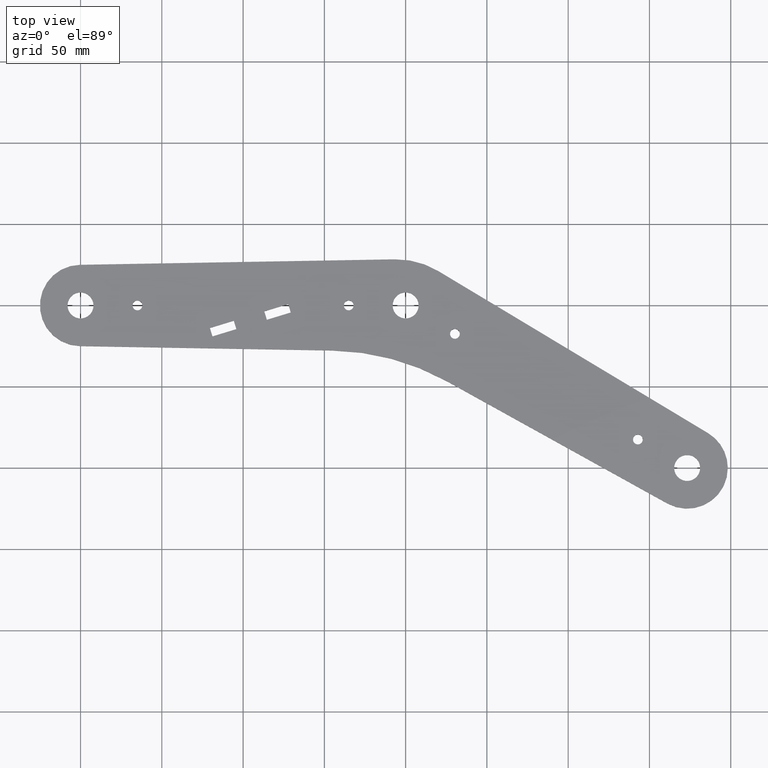
[diagram: clean part render]
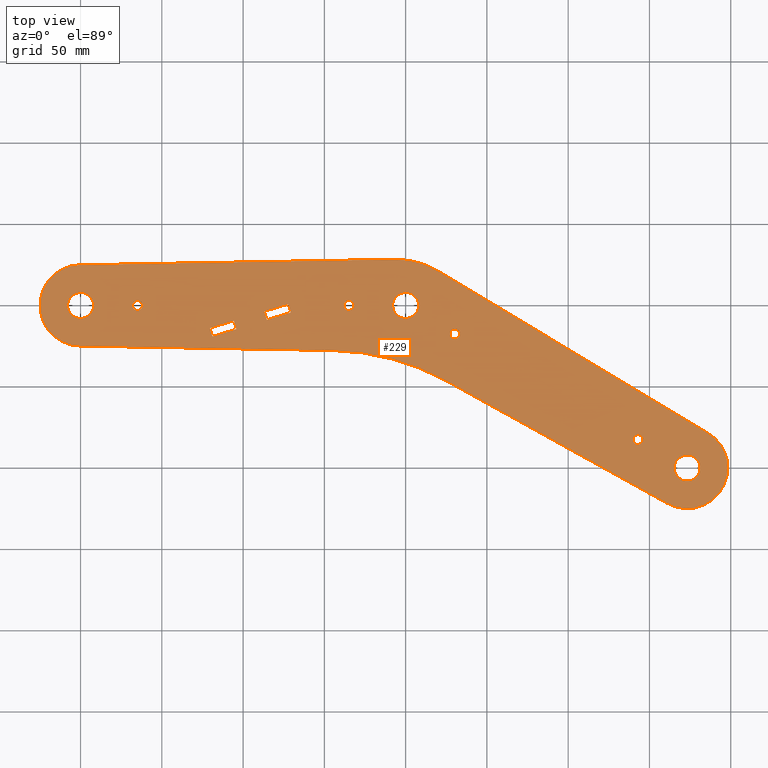
[diagram: same view with one face highlighted and labeled with its STEP entity id]
A machine part, top view. The second image highlights one B-rep face of the part: STEP entity #229.
In plain terms, the highlighted planar face has unit normal (0, 0, 1).
Its self-contained STEP definition (entity closure, byte-faithful):
#24 = CIRCLE ( 'NONE', #671, 3.000000000000002665 ) ;
#29 = EDGE_CURVE ( 'NONE', #301, #927, #991, .T. ) ;
#38 = ORIENTED_EDGE ( 'NONE', *, *, #1180, .F. ) ;
#40 = DIRECTION ( 'NONE',  ( 1.000000000000000000, 0.000000000000000000, 0.000000000000000000 ) ) ;
#43 = LINE ( 'NONE', #1081, #969 ) ;
#44 = CIRCLE ( 'NONE', #1071, 3.000000000000002665 ) ;
#45 = ORIENTED_EDGE ( 'NONE', *, *, #942, .T. ) ;
#48 = CARTESIAN_POINT ( 'NONE',  ( 33.31088913245535821, -17.50000000000000000, 0.000000000000000000 ) ) ;
#51 = VERTEX_POINT ( 'NONE', #48 ) ;
#58 = DIRECTION ( 'NONE',  ( 0.9563047559630395433, 0.2923717047227235577, 1.232595164407830946E-32 ) ) ;
#65 = DIRECTION ( 'NONE',  ( 0.8746197071393919664, -0.4848096202463438309, -0.000000000000000000 ) ) ;
#67 = LINE ( 'NONE', #150, #979 ) ;
#78 = FACE_BOUND ( 'NONE', #833, .T. ) ;
#83 = ORIENTED_EDGE ( 'NONE', *, *, #208, .T. ) ;
#84 = CARTESIAN_POINT ( 'NONE',  ( -200.4363101609320950, 24.99619237890977530, 0.000000000000000000 ) ) ;
#89 = LINE ( 'NONE', #84, #1168 ) ;
#92 = ORIENTED_EDGE ( 'NONE', *, *, #488, .T. ) ;
#101 = CARTESIAN_POINT ( 'NONE',  ( -118.8407654579053627, -19.05120652197093634, 6.938893903907228378E-15 ) ) ;
#114 = CARTESIAN_POINT ( 'NONE',  ( -86.94890620470168585, -3.654151174475197550, 6.938893903907228378E-15 ) ) ;
#115 = EDGE_CURVE ( 'NONE', #1056, #51, #821, .T. ) ;
#117 = EDGE_CURVE ( 'NONE', #929, #301, #708, .T. ) ;
#119 = CIRCLE ( 'NONE', #410, 8.000000000000000000 ) ;
#121 = DIRECTION ( 'NONE',  ( 0.000000000000000000, 0.000000000000000000, 1.000000000000000000 ) ) ;
#123 = EDGE_CURVE ( 'NONE', #142, #353, #843, .T. ) ;
#124 = VERTEX_POINT ( 'NONE', #623 ) ;
#131 = ORIENTED_EDGE ( 'NONE', *, *, #1012, .F. ) ;
#139 = EDGE_CURVE ( 'NONE', #1137, #1151, #43, .T. ) ;
#142 = VERTEX_POINT ( 'NONE', #529 ) ;
#143 = CARTESIAN_POINT ( 'NONE',  ( -200.4363101609320950, -24.99619237890977530, 0.000000000000000000 ) ) ;
#148 = CARTESIAN_POINT ( 'NONE',  ( 27.31088913245535110, -17.50000000000000000, 0.000000000000000000 ) ) ;
#150 = CARTESIAN_POINT ( 'NONE',  ( -86.94890620470168585, -3.654151174475197550, 6.938893903907228378E-15 ) ) ;
#157 = DIRECTION ( 'NONE',  ( 1.000000000000000000, 0.000000000000000000, 0.000000000000000000 ) ) ;
#158 = VECTOR ( 'NONE', #1171, 1000.000000000000000 ) ;
#161 = EDGE_LOOP ( 'NONE', ( #92, #844, #782, #373, #365, #497, #45, #1124, #800 ) ) ;
#162 = CARTESIAN_POINT ( 'NONE',  ( -165.0000000000000000, 0.000000000000000000, 0.000000000000000000 ) ) ;
#166 = AXIS2_PLACEMENT_3D ( 'NONE', #912, #718, #812 ) ;
#171 = LINE ( 'NONE', #454, #430 ) ;
#174 = DIRECTION ( 'NONE',  ( 1.000000000000000000, 0.000000000000000000, -0.000000000000000000 ) ) ;
#182 = CARTESIAN_POINT ( 'NONE',  ( -5.791422998877997941, -21.61388487992635632, 0.000000000000000000 ) ) ;
#191 = EDGE_LOOP ( 'NONE', ( #1005, #243 ) ) ;
#193 = EDGE_CURVE ( 'NONE', #940, #999, #89, .T. ) ;
#196 = CARTESIAN_POINT ( 'NONE',  ( 173.2050807568876110, -100.0000000000001990, 0.000000000000000000 ) ) ;
#198 = VERTEX_POINT ( 'NONE', #375 ) ;
#200 = AXIS2_PLACEMENT_3D ( 'NONE', #357, #983, #992 ) ;
#204 = VERTEX_POINT ( 'NONE', #554 ) ;
#206 = EDGE_CURVE ( 'NONE', #218, #358, #119, .T. ) ;
#207 = AXIS2_PLACEMENT_3D ( 'NONE', #1128, #121, #870 ) ;
#208 = EDGE_CURVE ( 'NONE', #198, #503, #171, .T. ) ;
#217 = VERTEX_POINT ( 'NONE', #1108 ) ;
#218 = VERTEX_POINT ( 'NONE', #924 ) ;
#219 = CIRCLE ( 'NONE', #802, 8.000000000000007105 ) ;
#229 = ADVANCED_FACE ( 'NONE', ( #541, #817, #463, #647, #78, #1115, #356, #1182, #1009, #448 ), #736, .T. ) ;
#235 = VECTOR ( 'NONE', #855, 1000.000000000000000 ) ;
#238 = CIRCLE ( 'NONE', #1190, 8.000000000000007105 ) ;
#239 = DIRECTION ( 'NONE',  ( 0.000000000000000000, 0.000000000000000000, 1.000000000000000000 ) ) ;
#242 = EDGE_CURVE ( 'NONE', #432, #767, #219, .T. ) ;
#243 = ORIENTED_EDGE ( 'NONE', *, *, #750, .F. ) ;
#260 = DIRECTION ( 'NONE',  ( -0.9998476951563911586, -0.01745240643728353941, -0.000000000000000000 ) ) ;
#263 = CIRCLE ( 'NONE', #166, 3.000000000000002665 ) ;
#267 = DIRECTION ( 'NONE',  ( 1.000000000000000000, 0.000000000000000000, 0.000000000000000000 ) ) ;
#278 = LINE ( 'NONE', #286, #1038 ) ;
#284 = DIRECTION ( 'NONE',  ( 0.000000000000000000, 0.000000000000000000, 1.000000000000000000 ) ) ;
#286 = CARTESIAN_POINT ( 'NONE',  ( -120.4195726634080756, -13.88716083977052307, 0.000000000000000000 ) ) ;
#290 = DIRECTION ( 'NONE',  ( 1.000000000000000000, 0.000000000000000000, 0.000000000000000000 ) ) ;
#292 = CARTESIAN_POINT ( 'NONE',  ( 165.2050807568876110, -100.0000000000001990, 0.000000000000000000 ) ) ;
#301 = VERTEX_POINT ( 'NONE', #1133 ) ;
#306 = EDGE_LOOP ( 'NONE', ( #387, #959, #1065, #83 ) ) ;
#318 = AXIS2_PLACEMENT_3D ( 'NONE', #1154, #319, #605 ) ;
#319 = DIRECTION ( 'NONE',  ( 0.000000000000000000, 0.000000000000000000, 1.000000000000000000 ) ) ;
#324 = CARTESIAN_POINT ( 'NONE',  ( -168.0000000000000000, 3.673940397442044091E-16, 0.000000000000000000 ) ) ;
#331 = VECTOR ( 'NONE', #507, 1000.000000000000000 ) ;
#334 = ORIENTED_EDGE ( 'NONE', *, *, #601, .F. ) ;
#336 = CARTESIAN_POINT ( 'NONE',  ( -200.4363101609320950, -24.99619237890977530, 0.000000000000000000 ) ) ;
#339 = DIRECTION ( 'NONE',  ( -0.000000000000000000, -0.000000000000000000, -1.000000000000000000 ) ) ;
#346 = CARTESIAN_POINT ( 'NONE',  ( 139.8941916244323806, -82.50000000000000000, 0.000000000000000000 ) ) ;
#347 = VERTEX_POINT ( 'NONE', #1127 ) ;
#348 = DIRECTION ( 'NONE',  ( 0.2923717047227235577, -0.9563047559630395433, 1.346463662689436485E-33 ) ) ;
#353 = VERTEX_POINT ( 'NONE', #674 ) ;
#356 = FACE_BOUND ( 'NONE', #191, .T. ) ;
#357 = CARTESIAN_POINT ( 'NONE',  ( 0.000000000000000000, 0.000000000000000000, 0.000000000000000000 ) ) ;
#358 = VERTEX_POINT ( 'NONE', #1022 ) ;
#365 = ORIENTED_EDGE ( 'NONE', *, *, #123, .T. ) ;
#367 = EDGE_CURVE ( 'NONE', #503, #1195, #566, .T. ) ;
#368 = DIRECTION ( 'NONE',  ( 0.000000000000000000, 0.000000000000000000, 1.000000000000000000 ) ) ;
#369 = CARTESIAN_POINT ( 'NONE',  ( -32.00000000000000000, 0.000000000000000000, 0.000000000000000000 ) ) ;
#373 = ORIENTED_EDGE ( 'NONE', *, *, #439, .T. ) ;
#375 = CARTESIAN_POINT ( 'NONE',  ( -105.6924794215772607, -9.384636587040581901, 0.000000000000000000 ) ) ;
#376 = DIRECTION ( 'NONE',  ( 0.000000000000000000, 0.000000000000000000, 1.000000000000000000 ) ) ;
#377 = ORIENTED_EDGE ( 'NONE', *, *, #29, .T. ) ;
#381 = AXIS2_PLACEMENT_3D ( 'NONE', #162, #890, #1161 ) ;
#387 = ORIENTED_EDGE ( 'NONE', *, *, #367, .T. ) ;
#410 = AXIS2_PLACEMENT_3D ( 'NONE', #1003, #643, #823 ) ;
#412 = DIRECTION ( 'NONE',  ( 1.000000000000000000, 0.000000000000000000, 0.000000000000000000 ) ) ;
#421 = ORIENTED_EDGE ( 'NONE', *, *, #115, .F. ) ;
#426 = CARTESIAN_POINT ( 'NONE',  ( 181.2050807568876394, -100.0000000000001990, 0.000000000000000000 ) ) ;
#427 = EDGE_CURVE ( 'NONE', #51, #1056, #44, .T. ) ;
#430 = VECTOR ( 'NONE', #731, 1000.000000000000000 ) ;
#432 = VERTEX_POINT ( 'NONE', #520 ) ;
#439 = EDGE_CURVE ( 'NONE', #479, #142, #1054, .T. ) ;
#448 = FACE_OUTER_BOUND ( 'NONE', #161, .T. ) ;
#454 = CARTESIAN_POINT ( 'NONE',  ( -105.6924794215772607, -9.384636587040581901, 6.938893903907228378E-15 ) ) ;
#463 = FACE_BOUND ( 'NONE', #853, .T. ) ;
#465 = VERTEX_POINT ( 'NONE', #1176 ) ;
#476 = EDGE_CURVE ( 'NONE', #1110, #217, #24, .T. ) ;
#479 = VERTEX_POINT ( 'NONE', #336 ) ;
#485 = DIRECTION ( 'NONE',  ( 1.000000000000000000, 0.000000000000000000, 0.000000000000000000 ) ) ;
#488 = EDGE_CURVE ( 'NONE', #1151, #940, #1032, .T. ) ;
#497 = ORIENTED_EDGE ( 'NONE', *, *, #1019, .T. ) ;
#503 = VERTEX_POINT ( 'NONE', #987 ) ;
#507 = DIRECTION ( 'NONE',  ( -0.2923717047227235577, 0.9563047559630395433, -1.346463662689436485E-33 ) ) ;
#519 = VERTEX_POINT ( 'NONE', #426 ) ;
#520 = CARTESIAN_POINT ( 'NONE',  ( -208.0000000000000284, 9.797174393178845379E-16, 0.000000000000000000 ) ) ;
#522 = DIRECTION ( 'NONE',  ( 1.000000000000000000, 0.000000000000000000, 0.000000000000000000 ) ) ;
#529 = CARTESIAN_POINT ( 'NONE',  ( -44.99312471194955521, -27.70946327357076555, 0.000000000000000000 ) ) ;
#532 = ORIENTED_EDGE ( 'NONE', *, *, #683, .F. ) ;
#533 = EDGE_CURVE ( 'NONE', #358, #218, #1091, .T. ) ;
#537 = CARTESIAN_POINT ( 'NONE',  ( -35.00000000000000000, 0.000000000000000000, 0.000000000000000000 ) ) ;
#540 = CARTESIAN_POINT ( 'NONE',  ( 161.0848402507290302, -121.8654926784849835, 0.000000000000000000 ) ) ;
#541 = FACE_BOUND ( 'NONE', #306, .T. ) ;
#549 = VECTOR ( 'NONE', #604, 1000.000000000000114 ) ;
#552 = ORIENTED_EDGE ( 'NONE', *, *, #117, .T. ) ;
#554 = CARTESIAN_POINT ( 'NONE',  ( -120.4195726634080756, -13.88716083977052307, 0.000000000000000000 ) ) ;
#556 = ORIENTED_EDGE ( 'NONE', *, *, #533, .F. ) ;
#558 = VECTOR ( 'NONE', #348, 1000.000000000000000 ) ;
#563 = EDGE_LOOP ( 'NONE', ( #38, #627 ) ) ;
#564 = VERTEX_POINT ( 'NONE', #346 ) ;
#566 = LINE ( 'NONE', #1036, #235 ) ;
#570 = AXIS2_PLACEMENT_3D ( 'NONE', #1162, #239, #522 ) ;
#576 = DIRECTION ( 'NONE',  ( 0.000000000000000000, 0.000000000000000000, 1.000000000000000000 ) ) ;
#578 = AXIS2_PLACEMENT_3D ( 'NONE', #537, #891, #157 ) ;
#585 = CARTESIAN_POINT ( 'NONE',  ( -70.64300575736815802, -4.315672603945670538, 0.000000000000000000 ) ) ;
#601 = EDGE_CURVE ( 'NONE', #749, #124, #1076, .T. ) ;
#604 = DIRECTION ( 'NONE',  ( 0.9998476951563911586, -0.01745240643728373023, 0.000000000000000000 ) ) ;
#605 = DIRECTION ( 'NONE',  ( 1.000000000000000000, 0.000000000000000000, 0.000000000000000000 ) ) ;
#609 = EDGE_CURVE ( 'NONE', #927, #347, #67, .T. ) ;
#615 = AXIS2_PLACEMENT_3D ( 'NONE', #922, #284, #290 ) ;
#618 = VECTOR ( 'NONE', #1092, 1000.000000000000000 ) ;
#622 = DIRECTION ( 'NONE',  ( 0.000000000000000000, 0.000000000000000000, 1.000000000000000000 ) ) ;
#623 = CARTESIAN_POINT ( 'NONE',  ( -38.00000000000000711, 3.673940397442059868E-16, 0.000000000000000000 ) ) ;
#627 = ORIENTED_EDGE ( 'NONE', *, *, #1100, .F. ) ;
#634 = ORIENTED_EDGE ( 'NONE', *, *, #206, .F. ) ;
#643 = DIRECTION ( 'NONE',  ( 0.000000000000000000, 0.000000000000000000, 1.000000000000000000 ) ) ;
#644 = CARTESIAN_POINT ( 'NONE',  ( -35.00000000000000000, 0.000000000000000000, 0.000000000000000000 ) ) ;
#647 = FACE_BOUND ( 'NONE', #807, .T. ) ;
#655 = DIRECTION ( 'NONE',  ( 1.000000000000000000, 0.000000000000000000, 0.000000000000000000 ) ) ;
#656 = DIRECTION ( 'NONE',  ( 0.000000000000000000, 0.000000000000000000, 1.000000000000000000 ) ) ;
#671 = AXIS2_PLACEMENT_3D ( 'NONE', #1072, #877, #894 ) ;
#674 = CARTESIAN_POINT ( 'NONE',  ( 25.11045735940951218, -46.49366147612066413, 0.000000000000000000 ) ) ;
#683 = EDGE_CURVE ( 'NONE', #124, #749, #776, .T. ) ;
#694 = DIRECTION ( 'NONE',  ( 0.000000000000000000, 0.000000000000000000, 1.000000000000000000 ) ) ;
#701 = CARTESIAN_POINT ( 'NONE',  ( 30.31088913245535110, -17.50000000000000000, 0.000000000000000000 ) ) ;
#708 = LINE ( 'NONE', #896, #158 ) ;
#714 = VERTEX_POINT ( 'NONE', #292 ) ;
#716 = CIRCLE ( 'NONE', #1097, 8.000000000000007105 ) ;
#717 = CARTESIAN_POINT ( 'NONE',  ( -5.791422998877997941, -21.61388487992635632, 0.000000000000000000 ) ) ;
#718 = DIRECTION ( 'NONE',  ( 0.000000000000000000, 0.000000000000000000, 1.000000000000000000 ) ) ;
#720 = DIRECTION ( 'NONE',  ( -1.000000000000000000, 0.000000000000000000, 0.000000000000000000 ) ) ;
#729 = CARTESIAN_POINT ( 'NONE',  ( -118.8407654579053627, -19.05120652197093634, 0.000000000000000000 ) ) ;
#731 = DIRECTION ( 'NONE',  ( 0.2923717047227235577, -0.9563047559630395433, 1.346463662689436485E-33 ) ) ;
#733 = EDGE_CURVE ( 'NONE', #204, #198, #278, .T. ) ;
#736 = PLANE ( 'NONE',  #881 ) ;
#741 = DIRECTION ( 'NONE',  ( 0.000000000000000000, 0.000000000000000000, 1.000000000000000000 ) ) ;
#742 = EDGE_LOOP ( 'NONE', ( #785, #747 ) ) ;
#744 = CARTESIAN_POINT ( 'NONE',  ( 198.2050807568876110, -100.0000000000001990, 0.000000000000000000 ) ) ;
#747 = ORIENTED_EDGE ( 'NONE', *, *, #242, .F. ) ;
#749 = VERTEX_POINT ( 'NONE', #369 ) ;
#750 = EDGE_CURVE ( 'NONE', #714, #519, #829, .T. ) ;
#761 = CARTESIAN_POINT ( 'NONE',  ( 173.2050807568876110, -100.0000000000001990, 0.000000000000000000 ) ) ;
#767 = VERTEX_POINT ( 'NONE', #920 ) ;
#776 = CIRCLE ( 'NONE', #993, 3.000000000000002665 ) ;
#782 = ORIENTED_EDGE ( 'NONE', *, *, #930, .T. ) ;
#785 = ORIENTED_EDGE ( 'NONE', *, *, #1035, .F. ) ;
#791 = EDGE_CURVE ( 'NONE', #519, #714, #238, .T. ) ;
#792 = CIRCLE ( 'NONE', #207, 24.99999999999999289 ) ;
#793 = CIRCLE ( 'NONE', #381, 3.000000000000002665 ) ;
#800 = ORIENTED_EDGE ( 'NONE', *, *, #139, .T. ) ;
#802 = AXIS2_PLACEMENT_3D ( 'NONE', #835, #368, #655 ) ;
#804 = LINE ( 'NONE', #816, #558 ) ;
#805 = CARTESIAN_POINT ( 'NONE',  ( -47.61098567754208233, -177.6866175470294422, 0.000000000000000000 ) ) ;
#807 = EDGE_LOOP ( 'NONE', ( #334, #532 ) ) ;
#809 = CIRCLE ( 'NONE', #960, 24.99999999999999289 ) ;
#812 = DIRECTION ( 'NONE',  ( 1.000000000000000000, 0.000000000000000000, 0.000000000000000000 ) ) ;
#816 = CARTESIAN_POINT ( 'NONE',  ( -72.22181296287088514, 0.8483730782547441729, 6.938893903907228378E-15 ) ) ;
#817 = FACE_BOUND ( 'NONE', #1095, .T. ) ;
#821 = CIRCLE ( 'NONE', #570, 3.000000000000002665 ) ;
#823 = DIRECTION ( 'NONE',  ( 1.000000000000000000, 0.000000000000000000, 0.000000000000000000 ) ) ;
#825 = EDGE_CURVE ( 'NONE', #1181, #1137, #809, .T. ) ;
#829 = CIRCLE ( 'NONE', #1132, 8.000000000000007105 ) ;
#833 = EDGE_LOOP ( 'NONE', ( #1020, #421 ) ) ;
#835 = CARTESIAN_POINT ( 'NONE',  ( -200.0000000000000000, 0.000000000000000000, 0.000000000000000000 ) ) ;
#843 = CIRCLE ( 'NONE', #917, 150.0000000000000000 ) ;
#844 = ORIENTED_EDGE ( 'NONE', *, *, #193, .T. ) ;
#850 = CIRCLE ( 'NONE', #318, 24.99999999999999289 ) ;
#853 = EDGE_LOOP ( 'NONE', ( #131, #867 ) ) ;
#855 = DIRECTION ( 'NONE',  ( -0.9563047559630395433, -0.2923717047227235577, -1.232595164407830946E-32 ) ) ;
#867 = ORIENTED_EDGE ( 'NONE', *, *, #476, .F. ) ;
#870 = DIRECTION ( 'NONE',  ( 1.000000000000000000, 0.000000000000000000, 0.000000000000000000 ) ) ;
#877 = DIRECTION ( 'NONE',  ( 0.000000000000000000, 0.000000000000000000, 1.000000000000000000 ) ) ;
#881 = AXIS2_PLACEMENT_3D ( 'NONE', #182, #1098, #174 ) ;
#890 = DIRECTION ( 'NONE',  ( 0.000000000000000000, 0.000000000000000000, 1.000000000000000000 ) ) ;
#891 = DIRECTION ( 'NONE',  ( 0.000000000000000000, 0.000000000000000000, 1.000000000000000000 ) ) ;
#894 = DIRECTION ( 'NONE',  ( 1.000000000000000000, 0.000000000000000000, 0.000000000000000000 ) ) ;
#896 = CARTESIAN_POINT ( 'NONE',  ( -70.64300575736817223, -4.315672603945668762, 6.938893903907228378E-15 ) ) ;
#900 = DIRECTION ( 'NONE',  ( 0.000000000000000000, 0.000000000000000000, 1.000000000000000000 ) ) ;
#907 = DIRECTION ( 'NONE',  ( 1.000000000000000000, 0.000000000000000000, 0.000000000000000000 ) ) ;
#911 = EDGE_LOOP ( 'NONE', ( #634, #556 ) ) ;
#912 = CARTESIAN_POINT ( 'NONE',  ( 142.8941916244323806, -82.50000000000000000, 0.000000000000000000 ) ) ;
#916 = ORIENTED_EDGE ( 'NONE', *, *, #1101, .T. ) ;
#917 = AXIS2_PLACEMENT_3D ( 'NONE', #805, #339, #720 ) ;
#920 = CARTESIAN_POINT ( 'NONE',  ( -192.0000000000000000, 0.000000000000000000, 0.000000000000000000 ) ) ;
#922 = CARTESIAN_POINT ( 'NONE',  ( 142.8941916244323806, -82.50000000000000000, 0.000000000000000000 ) ) ;
#924 = CARTESIAN_POINT ( 'NONE',  ( 8.000000000000000000, 0.000000000000000000, 0.000000000000000000 ) ) ;
#927 = VERTEX_POINT ( 'NONE', #114 ) ;
#929 = VERTEX_POINT ( 'NONE', #585 ) ;
#930 = EDGE_CURVE ( 'NONE', #999, #479, #850, .T. ) ;
#932 = CARTESIAN_POINT ( 'NONE',  ( 173.2050807568876110, -100.0000000000001990, 0.000000000000000000 ) ) ;
#940 = VERTEX_POINT ( 'NONE', #1043 ) ;
#942 = EDGE_CURVE ( 'NONE', #1084, #1181, #792, .T. ) ;
#955 = ORIENTED_EDGE ( 'NONE', *, *, #609, .T. ) ;
#959 = ORIENTED_EDGE ( 'NONE', *, *, #1123, .T. ) ;
#960 = AXIS2_PLACEMENT_3D ( 'NONE', #761, #376, #1116 ) ;
#969 = VECTOR ( 'NONE', #986, 1000.000000000000114 ) ;
#979 = VECTOR ( 'NONE', #58, 1000.000000000000000 ) ;
#982 = CARTESIAN_POINT ( 'NONE',  ( -85.37009899919897293, -8.818196856675612594, 6.938893903907228378E-15 ) ) ;
#983 = DIRECTION ( 'NONE',  ( 0.000000000000000000, 0.000000000000000000, 1.000000000000000000 ) ) ;
#985 = CARTESIAN_POINT ( 'NONE',  ( 161.0848402507290302, -121.8654926784849835, 0.000000000000000000 ) ) ;
#986 = DIRECTION ( 'NONE',  ( -0.8571673007021152202, 0.5150380749100493816, 0.000000000000000000 ) ) ;
#987 = CARTESIAN_POINT ( 'NONE',  ( -104.1136722160745620, -14.54868226924099872, 0.000000000000000000 ) ) ;
#990 = LINE ( 'NONE', #985, #1192 ) ;
#991 = LINE ( 'NONE', #982, #331 ) ;
#992 = DIRECTION ( 'NONE',  ( 1.000000000000000000, 0.000000000000000000, 0.000000000000000000 ) ) ;
#993 = AXIS2_PLACEMENT_3D ( 'NONE', #644, #576, #1010 ) ;
#999 = VERTEX_POINT ( 'NONE', #1073 ) ;
#1003 = CARTESIAN_POINT ( 'NONE',  ( 0.000000000000000000, 0.000000000000000000, 0.000000000000000000 ) ) ;
#1005 = ORIENTED_EDGE ( 'NONE', *, *, #791, .F. ) ;
#1009 = FACE_BOUND ( 'NONE', #742, .T. ) ;
#1010 = DIRECTION ( 'NONE',  ( 1.000000000000000000, 0.000000000000000000, 0.000000000000000000 ) ) ;
#1012 = EDGE_CURVE ( 'NONE', #217, #1110, #793, .T. ) ;
#1015 = CARTESIAN_POINT ( 'NONE',  ( 19.96048074662445160, 21.24448015517938160, 0.000000000000000000 ) ) ;
#1019 = EDGE_CURVE ( 'NONE', #353, #1084, #990, .T. ) ;
#1020 = ORIENTED_EDGE ( 'NONE', *, *, #427, .F. ) ;
#1022 = CARTESIAN_POINT ( 'NONE',  ( -8.000000000000000000, 9.797174393178825657E-16, 0.000000000000000000 ) ) ;
#1032 = CIRCLE ( 'NONE', #1150, 49.99999999999998579 ) ;
#1035 = EDGE_CURVE ( 'NONE', #767, #432, #716, .T. ) ;
#1036 = CARTESIAN_POINT ( 'NONE',  ( -104.1136722160745620, -14.54868226924099517, 6.938893903907228378E-15 ) ) ;
#1038 = VECTOR ( 'NONE', #1103, 1000.000000000000000 ) ;
#1043 = CARTESIAN_POINT ( 'NONE',  ( -6.664043320742175425, 28.37849987789320139, 0.000000000000000000 ) ) ;
#1054 = LINE ( 'NONE', #143, #549 ) ;
#1056 = VERTEX_POINT ( 'NONE', #148 ) ;
#1065 = ORIENTED_EDGE ( 'NONE', *, *, #733, .T. ) ;
#1068 = CARTESIAN_POINT ( 'NONE',  ( 186.0810326296388553, -78.57081748244732466, 0.000000000000000000 ) ) ;
#1071 = AXIS2_PLACEMENT_3D ( 'NONE', #701, #900, #40 ) ;
#1072 = CARTESIAN_POINT ( 'NONE',  ( -165.0000000000000000, 0.000000000000000000, 0.000000000000000000 ) ) ;
#1073 = CARTESIAN_POINT ( 'NONE',  ( -200.4363101609320950, 24.99619237890977530, 0.000000000000000000 ) ) ;
#1076 = CIRCLE ( 'NONE', #578, 3.000000000000002665 ) ;
#1081 = CARTESIAN_POINT ( 'NONE',  ( 186.0810326296388553, -78.57081748244732466, 0.000000000000000000 ) ) ;
#1084 = VERTEX_POINT ( 'NONE', #540 ) ;
#1085 = LINE ( 'NONE', #729, #618 ) ;
#1091 = CIRCLE ( 'NONE', #200, 8.000000000000000000 ) ;
#1092 = DIRECTION ( 'NONE',  ( -0.2923717047227235577, 0.9563047559630395433, -1.346463662689436485E-33 ) ) ;
#1095 = EDGE_LOOP ( 'NONE', ( #552, #377, #955, #916 ) ) ;
#1097 = AXIS2_PLACEMENT_3D ( 'NONE', #1165, #622, #907 ) ;
#1098 = DIRECTION ( 'NONE',  ( 0.000000000000000000, 0.000000000000000000, 1.000000000000000000 ) ) ;
#1100 = EDGE_CURVE ( 'NONE', #564, #465, #263, .T. ) ;
#1101 = EDGE_CURVE ( 'NONE', #347, #929, #804, .T. ) ;
#1103 = DIRECTION ( 'NONE',  ( 0.9563047559630395433, 0.2923717047227235577, 1.232595164407830946E-32 ) ) ;
#1108 = CARTESIAN_POINT ( 'NONE',  ( -162.0000000000000000, 0.000000000000000000, 0.000000000000000000 ) ) ;
#1110 = VERTEX_POINT ( 'NONE', #324 ) ;
#1115 = FACE_BOUND ( 'NONE', #563, .T. ) ;
#1116 = DIRECTION ( 'NONE',  ( 1.000000000000000000, 0.000000000000000000, 0.000000000000000000 ) ) ;
#1123 = EDGE_CURVE ( 'NONE', #1195, #204, #1085, .T. ) ;
#1124 = ORIENTED_EDGE ( 'NONE', *, *, #825, .T. ) ;
#1127 = CARTESIAN_POINT ( 'NONE',  ( -72.22181296287088514, 0.8483730782547441729, 6.938893903907228378E-15 ) ) ;
#1128 = CARTESIAN_POINT ( 'NONE',  ( 173.2050807568876110, -100.0000000000001990, 0.000000000000000000 ) ) ;
#1132 = AXIS2_PLACEMENT_3D ( 'NONE', #196, #656, #485 ) ;
#1133 = CARTESIAN_POINT ( 'NONE',  ( -85.37009899919897293, -8.818196856675612594, 6.938893903907228378E-15 ) ) ;
#1135 = CIRCLE ( 'NONE', #615, 3.000000000000002665 ) ;
#1137 = VERTEX_POINT ( 'NONE', #1068 ) ;
#1150 = AXIS2_PLACEMENT_3D ( 'NONE', #717, #694, #412 ) ;
#1151 = VERTEX_POINT ( 'NONE', #1015 ) ;
#1154 = CARTESIAN_POINT ( 'NONE',  ( -200.0000000000000000, 0.000000000000000000, 0.000000000000000000 ) ) ;
#1161 = DIRECTION ( 'NONE',  ( 1.000000000000000000, 0.000000000000000000, 0.000000000000000000 ) ) ;
#1162 = CARTESIAN_POINT ( 'NONE',  ( 30.31088913245535110, -17.50000000000000000, 0.000000000000000000 ) ) ;
#1165 = CARTESIAN_POINT ( 'NONE',  ( -200.0000000000000000, 0.000000000000000000, 0.000000000000000000 ) ) ;
#1168 = VECTOR ( 'NONE', #260, 1000.000000000000114 ) ;
#1171 = DIRECTION ( 'NONE',  ( -0.9563047559630395433, -0.2923717047227235577, -1.232595164407830946E-32 ) ) ;
#1176 = CARTESIAN_POINT ( 'NONE',  ( 145.8941916244323806, -82.50000000000000000, 0.000000000000000000 ) ) ;
#1180 = EDGE_CURVE ( 'NONE', #465, #564, #1135, .T. ) ;
#1181 = VERTEX_POINT ( 'NONE', #744 ) ;
#1182 = FACE_BOUND ( 'NONE', #911, .T. ) ;
#1190 = AXIS2_PLACEMENT_3D ( 'NONE', #932, #741, #267 ) ;
#1192 = VECTOR ( 'NONE', #65, 1000.000000000000227 ) ;
#1195 = VERTEX_POINT ( 'NONE', #101 ) ;